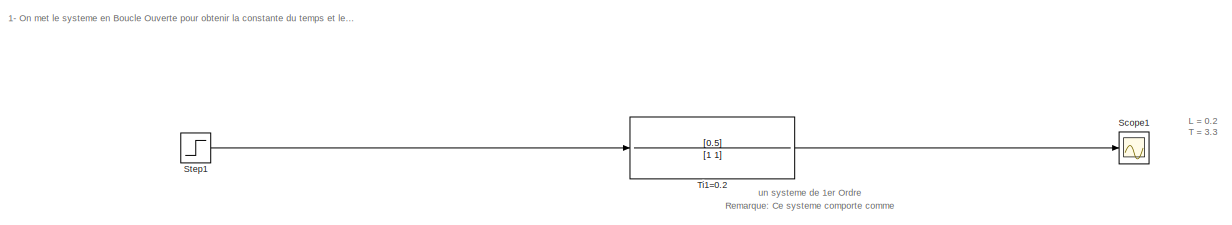
[diagram: root canvas - part 1/4, full width, top band]
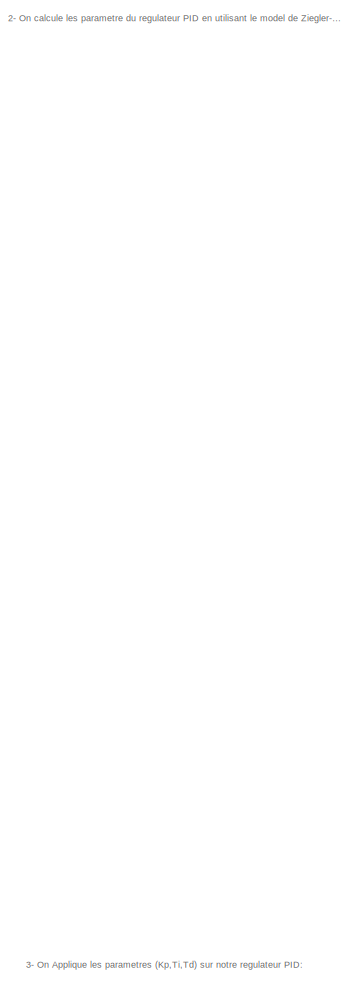
[diagram: root canvas - part 2/4, middle left region]
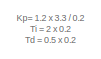
[diagram: root canvas - part 3/4, top right region]
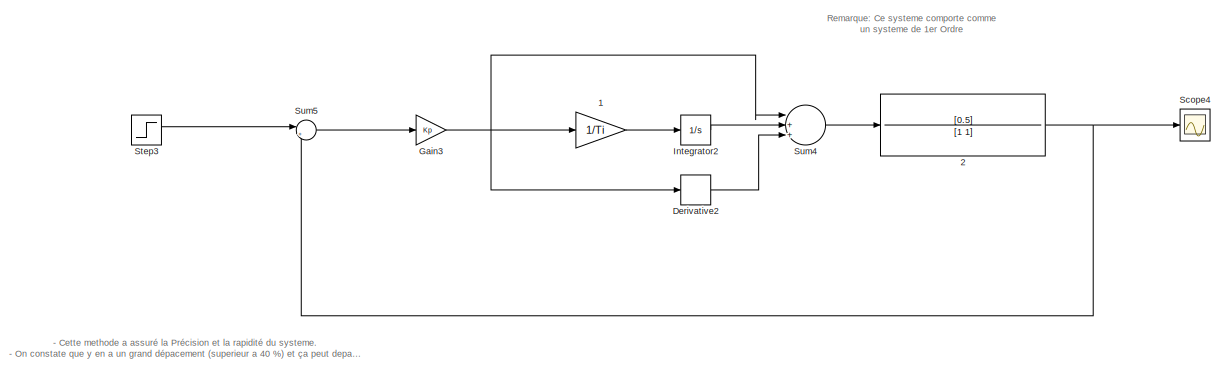
[diagram: root canvas - part 4/4, full width, bottom band]
MODEL slx_6d5e21485328
KIND model
CONFIG AbsTol = auto
CONFIG EnableMultiTasking = off
CONFIG FixedStep = auto
CONFIG MaxStep = auto
CONFIG MinStep = auto
CONFIG RelTol = 1e-3
CONFIG SampleTimeConstraint = Unconstrained
CONFIG Solver = VariableStepAuto
CONFIG SolverName = VariableStepAuto
CONFIG StartTime = 0.0
CONFIG StopTime = 20
BLOCK [Gain] 1 
  Gain = 1/Ti
  OutDataTypeStr = Inherit: Inherit via internal rule
  ParamDataTypeStr = Inherit: Inherit via internal rule
  SaturateOnIntegerOverflow = off
BLOCK [TransferFcn] 2
  Numerator = [0.5]
BLOCK [Derivative] Derivative2
  CoefficientInTFapproximation = Td
BLOCK [Gain] Gain3
  Gain = Kp
  OutDataTypeStr = Inherit: Inherit via internal rule
  ParamDataTypeStr = Inherit: Inherit via internal rule
  SaturateOnIntegerOverflow = off
BLOCK [Integrator] Integrator2
  Ports = [1, 1]
BLOCK [Scope] Scope1
  NumInputPorts = 1
  Ports = [1]
  ScopeSpecificationString = Simulink.scopes.TimeScopeBlockCfg('CurrentConfiguration', extmgr.ConfigurationSet(extmgr.Configuration('Core','General UI',true),extmgr.Configuration('Core','Source UI',true),extmgr.Configuration('Sources','WiredSimulink',true,'DataLoggingVariableName','ScopeData1'),extmgr.Configuration('Visuals','Time Domain',true,'SerializedDisplays',{struct('MinYLimReal','-0.0625','MaxYLimReal','0.5625','YLabel...<+1410ch>
BLOCK [Scope] Scope4
  NumInputPorts = 1
  Ports = [1]
  ScopeSpecificationString = Simulink.scopes.TimeScopeBlockCfg('CurrentConfiguration', extmgr.ConfigurationSet(extmgr.Configuration('Core','General UI',true),extmgr.Configuration('Core','Source UI',true),extmgr.Configuration('Sources','WiredSimulink',true,'DataLoggingVariableName','ScopeData3'),extmgr.Configuration('Visuals','Time Domain',true,'SerializedDisplays',{struct('MinYLimReal','-0.18581','MaxYLimReal','1.67225','YLab...<+1411ch>
BLOCK [Step] Step1
  SampleTime = 0
  Time = 0
BLOCK [Step] Step3
  SampleTime = 0
  Time = 0
BLOCK [Sum] Sum4
  InputSameDT = off
  Inputs = |+++
  OutDataTypeStr = Inherit: Inherit via internal rule
  Ports = [3, 1]
  SaturateOnIntegerOverflow = off
BLOCK [Sum] Sum5
  IconShape = round
  InputSameDT = off
  Inputs = |+-
  OutDataTypeStr = Inherit: Inherit via internal rule
  Ports = [2, 1]
  SaturateOnIntegerOverflow = off
BLOCK [TransferFcn] Ti1=0.2
  Numerator = [0.5]
ANNOTATION (root): Remarque: Ce systeme comporte comme un systeme de 1er Ordre
ANNOTATION (root): 1- On met le systeme en Boucle Ouverte pour obtenir la constante du temps et le retard:
ANNOTATION (root): 2- On calcule les parametre du regulateur PID en utilisant le model de Ziegler-Nichols :
ANNOTATION (root): 3- On Applique les parametres (Kp,Ti,Td) sur notre regulateur PID:
ANNOTATION (root): - Cette methode a assuré la Précision et la rapidité du systeme. - On constate que y en a un grand dépacement (superieur a 40 %) et ça peut depasser les limites du systeme physique.
ANNOTATION (root): Kp= 1.2 x 3.3 / 0.2 Ti = 2 x 0.2 Td = 0.5 x 0.2
ANNOTATION (root): L = 0.2 T = 3.3
LINE 1 :1 -> Integrator2:1
NET 2:1 -> Scope4:1, Sum5:2
LINE Derivative2:1 -> Sum4:3
NET Gain3:1 -> 1 :1, Derivative2:1, Sum4:1
LINE Integrator2:1 -> Sum4:2
LINE Step1:1 -> Ti1=0.2:1
LINE Step3:1 -> Sum5:1
LINE Sum4:1 -> 2:1
LINE Sum5:1 -> Gain3:1
LINE Ti1=0.2:1 -> Scope1:1
note: NET lines group one-source signal fan-out (src -> all destinations, sorted); 1:1 wires keep LINE
